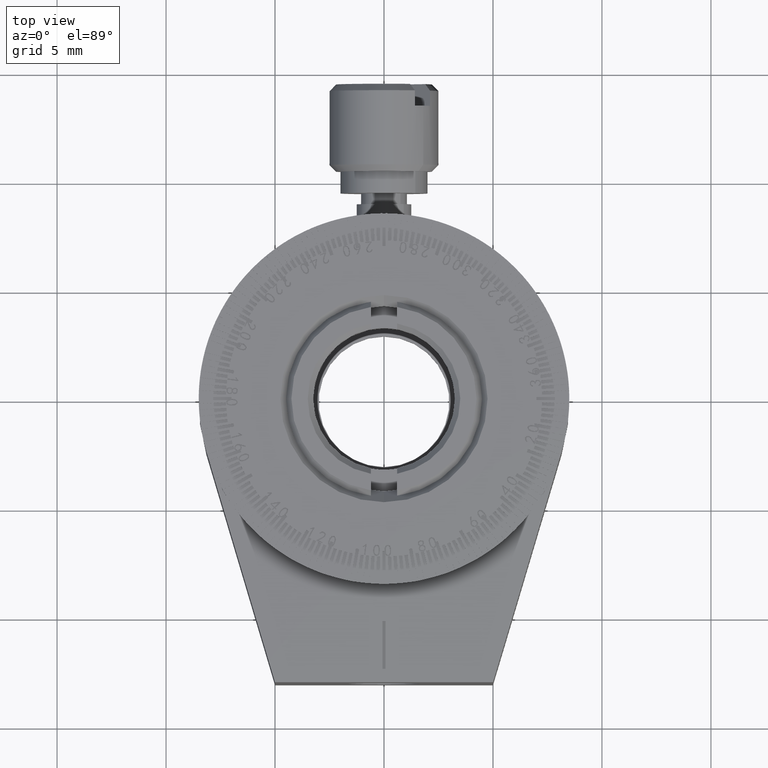
[diagram: clean part render]
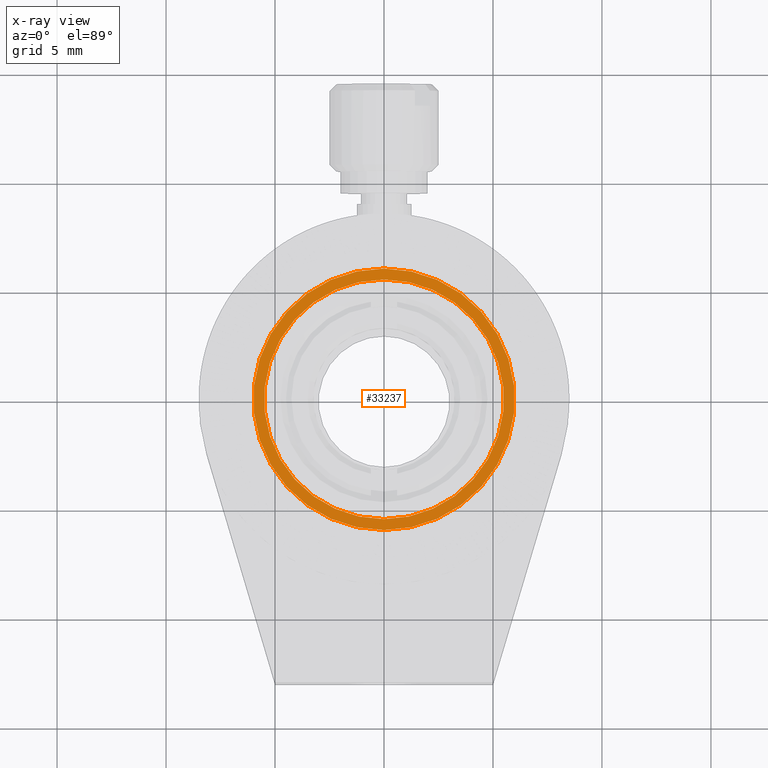
[diagram: x-ray — body ghosted, one internal face saturated and labeled with its STEP entity id]
A machine part, top view, then the same camera in x-ray: the body is ghosted and one INTERNAL B-rep face — a face not visible from any outside direction — is saturated and labeled: STEP entity #33237.
In plain terms, the highlighted planar face has unit normal (0, -0, -1).
Its self-contained STEP definition (entity closure, byte-faithful):
#1038 = DIRECTION ( 'NONE',  ( 0.000000000000000000, 0.000000000000000000, -1.000000000000000000 ) ) ;
#1274 = VERTEX_POINT ( 'NONE', #30659 ) ;
#2531 = DIRECTION ( 'NONE',  ( 0.000000000000000000, -0.000000000000000000, -1.000000000000000000 ) ) ;
#3293 = AXIS2_PLACEMENT_3D ( 'NONE', #49652, #39122, #1038 ) ;
#7363 = EDGE_CURVE ( 'NONE', #1274, #48570, #7694, .T. ) ;
#7694 = CIRCLE ( 'NONE', #20985, 6.000000000000000888 ) ;
#8238 = ORIENTED_EDGE ( 'NONE', *, *, #7363, .F. ) ;
#8734 = CARTESIAN_POINT ( 'NONE',  ( 0.000000000000000000, -1.000000000000000000, 0.000000000000000000 ) ) ;
#12745 = PLANE ( 'NONE',  #54471 ) ;
#14547 = CARTESIAN_POINT ( 'NONE',  ( 6.735557395310442023E-16, -1.000000000000000000, -5.500000000000000000 ) ) ;
#15335 = CARTESIAN_POINT ( 'NONE',  ( 0.000000000000000000, -1.000000000000000000, 5.500000000000000000 ) ) ;
#18424 = AXIS2_PLACEMENT_3D ( 'NONE', #8734, #28866, #63089 ) ;
#20985 = AXIS2_PLACEMENT_3D ( 'NONE', #50967, #55453, #60255 ) ;
#21721 = CIRCLE ( 'NONE', #3293, 6.000000000000000888 ) ;
#21724 = FACE_BOUND ( 'NONE', #37342, .T. ) ;
#22330 = EDGE_LOOP ( 'NONE', ( #8238, #46620 ) ) ;
#22632 = AXIS2_PLACEMENT_3D ( 'NONE', #47518, #38877, #32809 ) ;
#28866 = DIRECTION ( 'NONE',  ( 0.000000000000000000, -1.000000000000000000, 0.000000000000000000 ) ) ;
#30659 = CARTESIAN_POINT ( 'NONE',  ( 0.000000000000000000, -1.000000000000000000, 6.000000000000000888 ) ) ;
#32809 = DIRECTION ( 'NONE',  ( 0.000000000000000000, 0.000000000000000000, -1.000000000000000000 ) ) ;
#33237 = ADVANCED_FACE ( 'NONE', ( #21724, #41231 ), #12745, .F. ) ;
#37342 = EDGE_LOOP ( 'NONE', ( #44311, #42766 ) ) ;
#38877 = DIRECTION ( 'NONE',  ( 0.000000000000000000, -1.000000000000000000, 0.000000000000000000 ) ) ;
#39122 = DIRECTION ( 'NONE',  ( 0.000000000000000000, -1.000000000000000000, 0.000000000000000000 ) ) ;
#41231 = FACE_OUTER_BOUND ( 'NONE', #22330, .T. ) ;
#42288 = VERTEX_POINT ( 'NONE', #14547 ) ;
#42333 = EDGE_CURVE ( 'NONE', #50175, #42288, #59372, .T. ) ;
#42766 = ORIENTED_EDGE ( 'NONE', *, *, #54748, .T. ) ;
#43928 = EDGE_CURVE ( 'NONE', #48570, #1274, #21721, .T. ) ;
#44311 = ORIENTED_EDGE ( 'NONE', *, *, #42333, .T. ) ;
#46337 = CARTESIAN_POINT ( 'NONE',  ( 0.000000000000000000, -1.000000000000000000, 0.000000000000000000 ) ) ;
#46620 = ORIENTED_EDGE ( 'NONE', *, *, #43928, .F. ) ;
#47518 = CARTESIAN_POINT ( 'NONE',  ( 0.000000000000000000, -1.000000000000000000, 0.000000000000000000 ) ) ;
#48448 = CARTESIAN_POINT ( 'NONE',  ( 7.347880794884120722E-16, -1.000000000000000000, -6.000000000000000888 ) ) ;
#48570 = VERTEX_POINT ( 'NONE', #48448 ) ;
#49652 = CARTESIAN_POINT ( 'NONE',  ( 0.000000000000000000, -1.000000000000000000, 0.000000000000000000 ) ) ;
#50175 = VERTEX_POINT ( 'NONE', #15335 ) ;
#50967 = CARTESIAN_POINT ( 'NONE',  ( 0.000000000000000000, -1.000000000000000000, 0.000000000000000000 ) ) ;
#54207 = CIRCLE ( 'NONE', #18424, 5.500000000000000000 ) ;
#54471 = AXIS2_PLACEMENT_3D ( 'NONE', #46337, #60101, #2531 ) ;
#54748 = EDGE_CURVE ( 'NONE', #42288, #50175, #54207, .T. ) ;
#55453 = DIRECTION ( 'NONE',  ( 0.000000000000000000, -1.000000000000000000, 0.000000000000000000 ) ) ;
#59372 = CIRCLE ( 'NONE', #22632, 5.500000000000000000 ) ;
#60101 = DIRECTION ( 'NONE',  ( 0.000000000000000000, -1.000000000000000000, 0.000000000000000000 ) ) ;
#60255 = DIRECTION ( 'NONE',  ( 0.000000000000000000, 0.000000000000000000, -1.000000000000000000 ) ) ;
#63089 = DIRECTION ( 'NONE',  ( 0.000000000000000000, 0.000000000000000000, -1.000000000000000000 ) ) ;